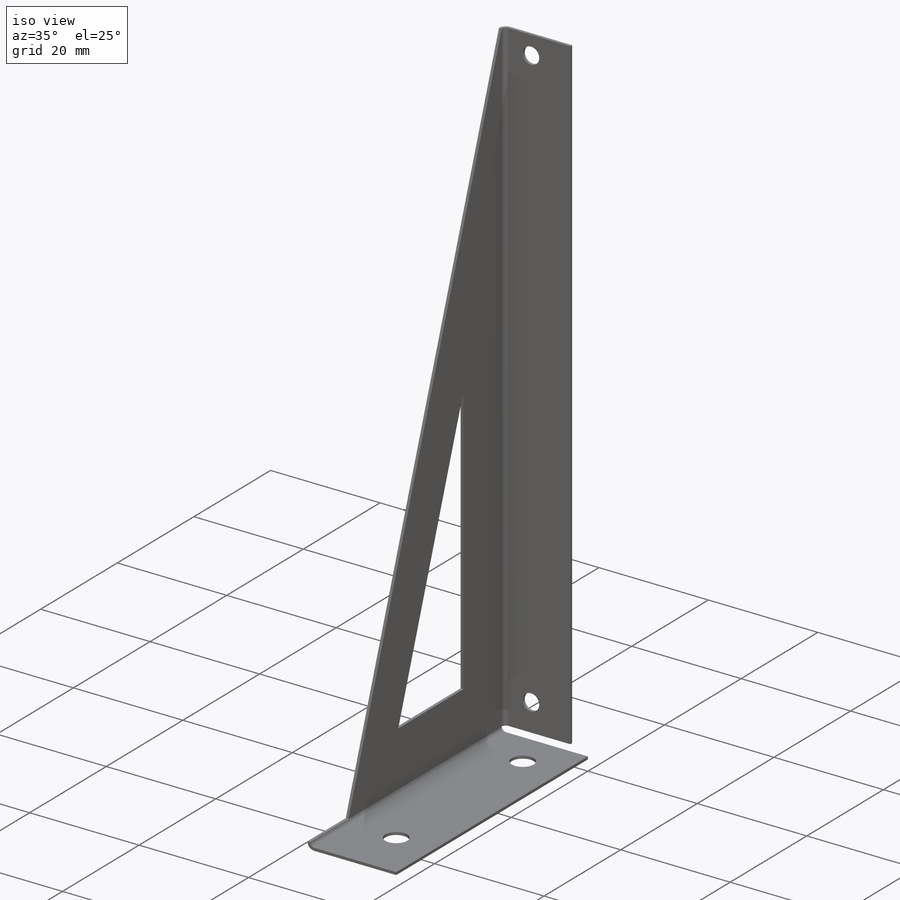
[diagram: iso view]
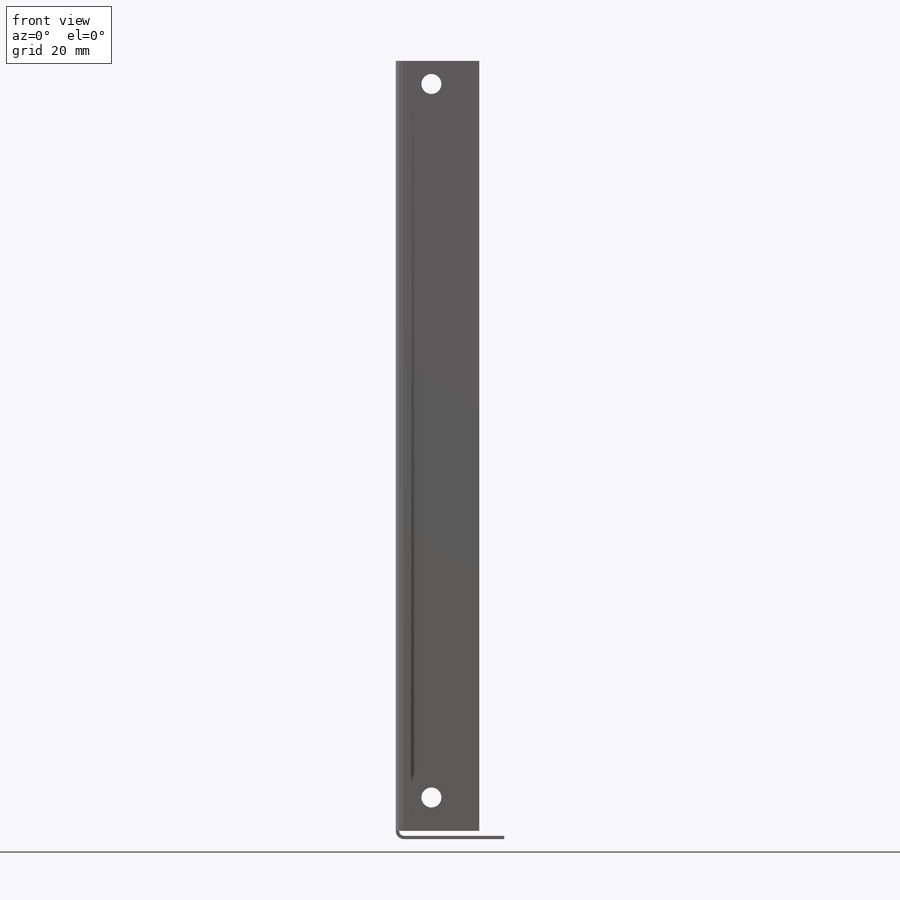
[diagram: front view]
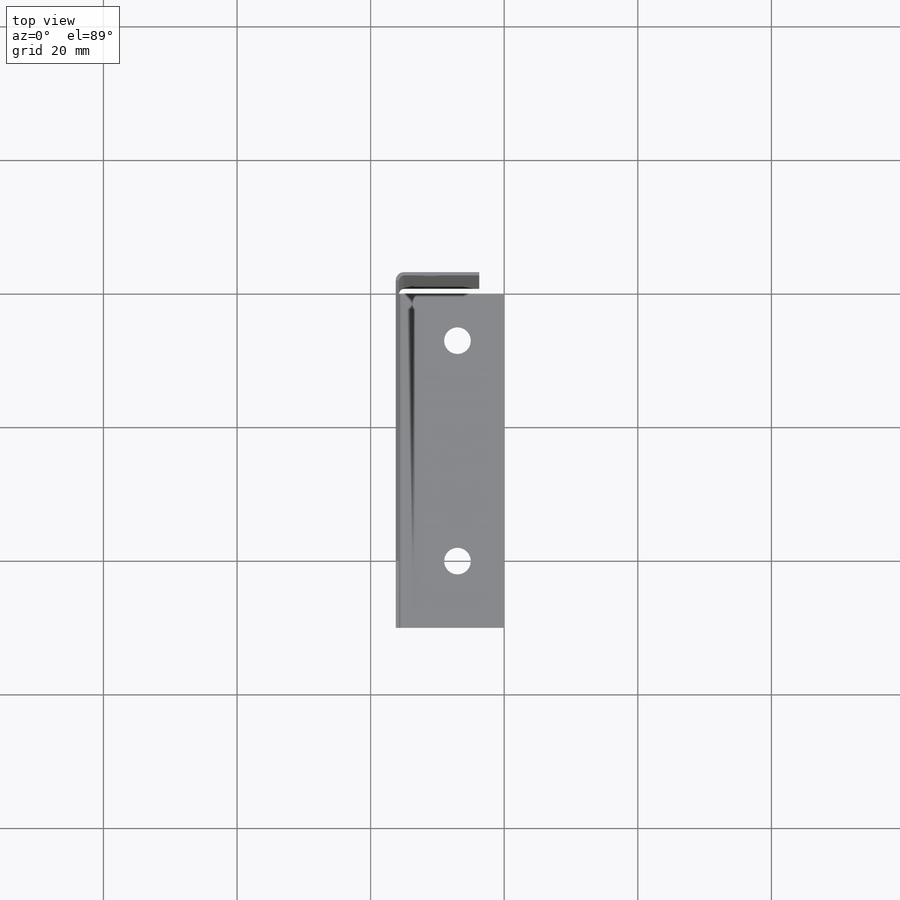
[diagram: top view]
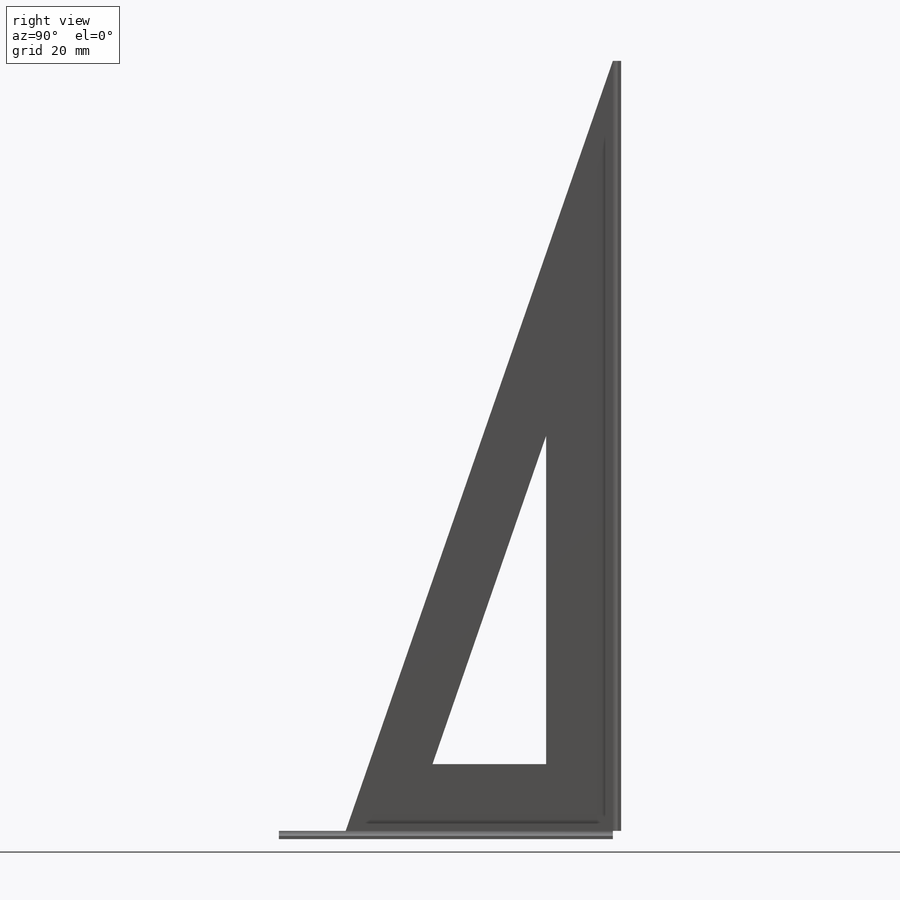
[diagram: right view]
SOLIDWORKS PART (.sldprt)
format: sldprt  version: not decoded by parser v0  size: 279,552 bytes
history: native  units: mm
features: sketch x11, cut_extrude x6, sheet_metal_op x3, material x1 + 2 further entries (+11 scaffold rows collapsed; 1 parser-record rows omitted)
feature tree (35):
  scaffold x11  (default folders/planes/origin — collapsed)
  material  "Material <not specified>"
  sketch  "Sketch2"  dims[D1=50.0mm D2=15.0mm]
  sheet_metal_op  "Sheet-Metal1"
  sheet_metal_op  "Base-Flange1"
  sketch  "Sketch7"  dims[c1.D1=0.7366mm c1.D4=90.0deg c1.D5=1.0 c1.D8=0.25mm c1.D9=0.25mm c2.D1=0.7366mm c2.D2=500.0mm c2.D3=0.0mm c2.D6=10.0mm c2.D7=116.0mm]
  sketch  "Sketch8"  dims[D1=10.0mm]
  cut_extrude  "Cut-Extrude1"  Depth=10mm Edge-Flange2=0
  sketch  "Sketch11"
  sheet_metal_op  "EdgeBend2"
  sketch  "Sketch12"  dims[c1.D1=10.0mm c1.D2=10.0mm c1.D3=10.0mm c1.D4=13.0mm c2.D1=~49.114492mm c2.D2=17.0mm c2.D3=10.0mm c2.D4=10.0mm]
  cut_extrude  "Cut-Extrude2"  Depth=10mm
  sketch  "Sketch13"  dims[c1.D3=3.0mm c1.D1=4.1mm c1.D2=5.0mm c2.D1=5.0mm c2.D2=4.1mm]
  cut_extrude  "Cut-Extrude3"  Depth=10mm
  sketch  "Sketch14"  dims[D1=106.8mm D2=4.1mm]
  cut_extrude  "Cut-Extrude4"  Depth=10mm
  sketch  "Sketch15"  dims[c1.D3=4.0mm c1.D1=7.0mm c1.D2=14.0mm c2.D1=10.0mm c2.D2=7.0mm]
  cut_extrude  "Cut-Extrude5"  Depth=12mm
  sketch  "Sketch16"  dims[D2=4.0mm D1=7.0mm D3=7.0mm]
  cut_extrude  "Cut-Extrude6"  Depth=12mm
  "Flat-Pattern1"
  sketch  "Bend-Lines1"
  sketch  "Bounding-Box1"
  "Flatten-<EdgeBend2>1"
  parser-record x1  (decoder bookkeeping rows leaked as tree rows — omitted from the tree; the rows remain in map.json)
decode coverage: 14 of 20 modeling features carry decoded parameters; 2 rows unclassified (native names shown)
note: ~ marks probable driven/reference dimensions
note: suppression state not decoded; provenance and decode notes live in map.json
